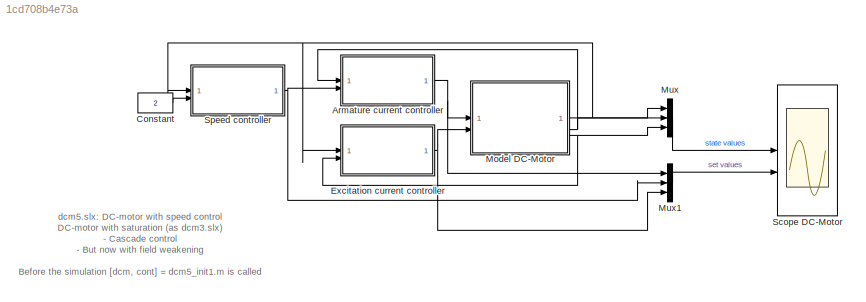
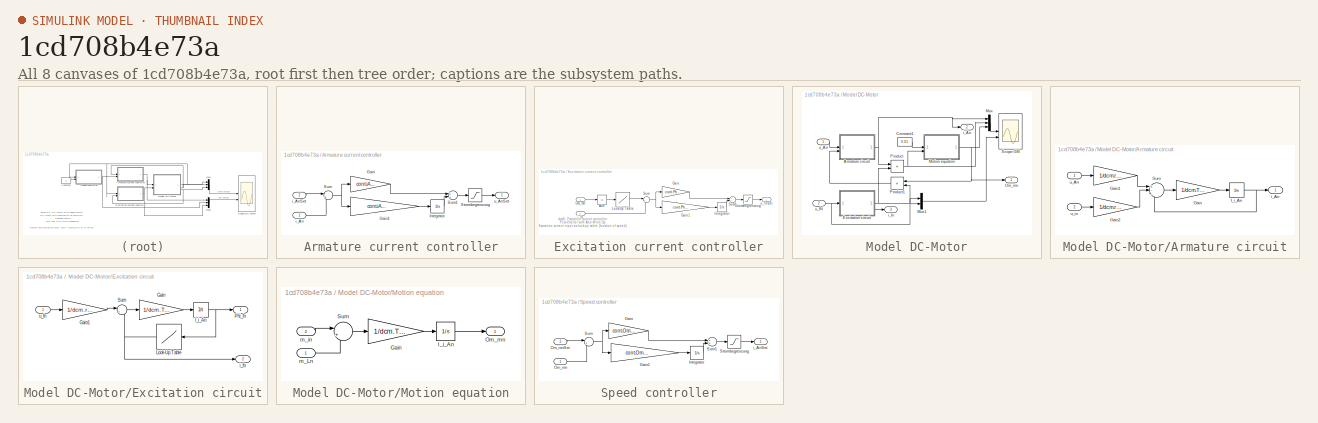
[diagram: thumbnail index - all 8 canvases of the model, root first then tree order]
MODEL slx_1cd708b4e73a
KIND model
CONFIG AbsTol = auto
CONFIG EnableMultiTasking = on
CONFIG FixedStep = auto
CONFIG InitFcn = [dcm, cont] = dcm5_init
CONFIG MaxStep = auto
CONFIG MinStep = auto
CONFIG RelTol = 1e-3
CONFIG SampleTimeConstraint = Unconstrained
CONFIG SolverName = ode45
CONFIG StartTime = 0.0
CONFIG StopTime = 2
BLOCK [SubSystem] Armature current controller
BLOCK [Gain] Armature current controller/Gain
  Gain = cont.iA.K
  OutDataTypeStr = Inherit: Same as input
  ParamDataTypeStr = Inherit: Same as input
  SaturateOnIntegerOverflow = on
BLOCK [Gain] Armature current controller/Gain1
  Gain = cont.iA.K/cont.iA.TN
  OutDataTypeStr = Inherit: Same as input
  ParamDataTypeStr = Inherit: Same as input
  SaturateOnIntegerOverflow = on
BLOCK [Integrator] Armature current controller/Integrator
  LimitOutput = on
  LowerSaturationLimit = -cont.u_Anmax
  UpperSaturationLimit = cont.u_Anmax
BLOCK [Saturate] Armature current controller/Strombegrenzung
  LowerLimit = -cont.u_Anmax
  UpperLimit = cont.u_Anmax
BLOCK [Sum] Armature current controller/Sum
  InputSameDT = on
  Inputs = |+-
  OutDataTypeStr = Inherit: Same as first input
  SaturateOnIntegerOverflow = on
BLOCK [Sum] Armature current controller/Sum1
  InputSameDT = on
  OutDataTypeStr = Inherit: Same as first input
  SaturateOnIntegerOverflow = on
BLOCK [Inport] Armature current controller/i_An
BLOCK [Inport] Armature current controller/i_AnSet
  Port = 2
BLOCK [Outport] Armature current controller/u_AnSet
  InitialOutput = 0
BLOCK [Constant] Constant
  Value = 2
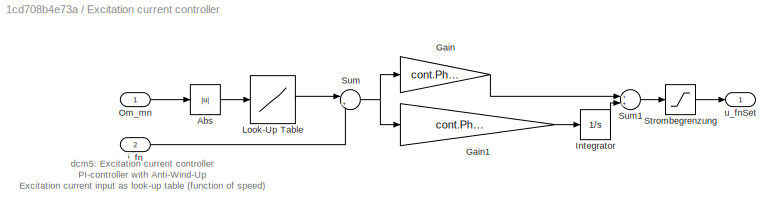
BLOCK [SubSystem] Excitation current controller
BLOCK [Abs] Excitation current controller/Abs
BLOCK [Gain] Excitation current controller/Gain
  Gain = cont.Phi.K
  OutDataTypeStr = Inherit: Same as input
  ParamDataTypeStr = Inherit: Same as input
  SaturateOnIntegerOverflow = on
BLOCK [Gain] Excitation current controller/Gain1
  Gain = cont.Phi.K/cont.Phi.TN
  OutDataTypeStr = Inherit: Same as input
  ParamDataTypeStr = Inherit: Same as input
  SaturateOnIntegerOverflow = on
BLOCK [Integrator] Excitation current controller/Integrator
  InitialCondition = dcm.Pfi_f0
  LimitOutput = on
  LowerSaturationLimit = 0.3*cont.u_fnmax
  UpperSaturationLimit = cont.u_fnmax
BLOCK [Lookup] Excitation current controller/Look-Up Table
  InputValues = cont.LookUpTable.Om
  Table = cont.LookUpTable.i_f
BLOCK [Inport] Excitation current controller/Om_mn
BLOCK [Saturate] Excitation current controller/Strombegrenzung
  LowerLimit = 0.3*cont.u_fnmax
  UpperLimit = cont.u_fnmax
BLOCK [Sum] Excitation current controller/Sum
  InputSameDT = on
  Inputs = |+-
  OutDataTypeStr = Inherit: Same as first input
  SaturateOnIntegerOverflow = on
BLOCK [Sum] Excitation current controller/Sum1
  InputSameDT = on
  OutDataTypeStr = Inherit: Same as first input
  SaturateOnIntegerOverflow = on
BLOCK [Inport] Excitation current controller/i_fn
  Port = 2
BLOCK [Outport] Excitation current controller/u_fnSet
  InitialOutput = 0
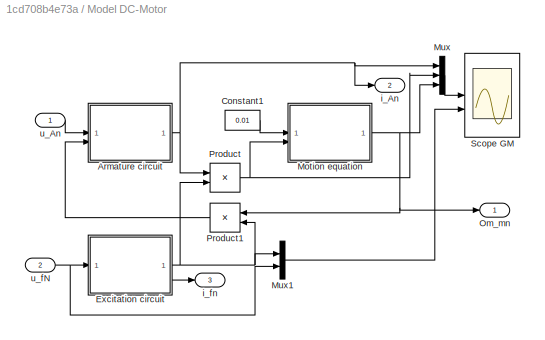
BLOCK [SubSystem] Model DC-Motor
BLOCK [SubSystem] Model DC-Motor/Armature circuit
BLOCK [Gain] Model DC-Motor/Armature circuit/Gain
  Gain = 1/dcm.T_A
  OutDataTypeStr = Inherit: Same as input
  ParamDataTypeStr = Inherit: Same as input
  SaturateOnIntegerOverflow = on
BLOCK [Gain] Model DC-Motor/Armature circuit/Gain1
  Gain = 1/dcm.r_A
  OutDataTypeStr = Inherit: Same as input
  ParamDataTypeStr = Inherit: Same as input
  SaturateOnIntegerOverflow = on
BLOCK [Gain] Model DC-Motor/Armature circuit/Gain2
  Gain = 1/dcm.r_A
  OutDataTypeStr = Inherit: Same as input
  ParamDataTypeStr = Inherit: Same as input
  SaturateOnIntegerOverflow = on
BLOCK [Integrator] Model DC-Motor/Armature circuit/I_i_An
BLOCK [Sum] Model DC-Motor/Armature circuit/Sum
  InputSameDT = on
  Inputs = +--
  OutDataTypeStr = Inherit: Same as first input
  SaturateOnIntegerOverflow = on
BLOCK [Outport] Model DC-Motor/Armature circuit/i_An
BLOCK [Inport] Model DC-Motor/Armature circuit/u_An
BLOCK [Inport] Model DC-Motor/Armature circuit/u_in
  Port = 2
BLOCK [Constant] Model DC-Motor/Constant1
  Value = 0.01
BLOCK [SubSystem] Model DC-Motor/Excitation circuit
BLOCK [Gain] Model DC-Motor/Excitation circuit/Gain
  Gain = 1/dcm.T_f
  OutDataTypeStr = Inherit: Same as input
  ParamDataTypeStr = Inherit: Same as input
  SaturateOnIntegerOverflow = on
BLOCK [Gain] Model DC-Motor/Excitation circuit/Gain1
  Gain = 1/dcm.r_f
  OutDataTypeStr = Inherit: Same as input
  ParamDataTypeStr = Inherit: Same as input
  SaturateOnIntegerOverflow = on
BLOCK [Integrator] Model DC-Motor/Excitation circuit/I_i_An
  InitialCondition = dcm.Pfi_f0
BLOCK [Lookup] Model DC-Motor/Excitation circuit/Look-Up Table
  InputValues = dcm.Phi_f
  Table = dcm.i_f
BLOCK [Outport] Model DC-Motor/Excitation circuit/Phi_fn
BLOCK [Sum] Model DC-Motor/Excitation circuit/Sum
  InputSameDT = on
  Inputs = |+-
  OutDataTypeStr = Inherit: Same as first input
  SaturateOnIntegerOverflow = on
BLOCK [Outport] Model DC-Motor/Excitation circuit/i_fn
  Port = 2
BLOCK [Inport] Model DC-Motor/Excitation circuit/u_fn
BLOCK [SubSystem] Model DC-Motor/Motion equation
BLOCK [Gain] Model DC-Motor/Motion equation/Gain
  Gain = 1/dcm.T_J
  OutDataTypeStr = Inherit: Same as input
  ParamDataTypeStr = Inherit: Same as input
  SaturateOnIntegerOverflow = on
BLOCK [Integrator] Model DC-Motor/Motion equation/I_i_An
  InitialCondition = dcm.Om_m0
BLOCK [Outport] Model DC-Motor/Motion equation/Om_mn
BLOCK [Sum] Model DC-Motor/Motion equation/Sum
  InputSameDT = on
  Inputs = |+-
  OutDataTypeStr = Inherit: Same as first input
  SaturateOnIntegerOverflow = on
BLOCK [Inport] Model DC-Motor/Motion equation/m_Ln
BLOCK [Inport] Model DC-Motor/Motion equation/m_in
  Port = 2
BLOCK [Mux] Model DC-Motor/Mux
  DisplayOption = bar
  Inputs = 3
BLOCK [Mux] Model DC-Motor/Mux1
  DisplayOption = bar
  Inputs = 2
BLOCK [Outport] Model DC-Motor/Om_mn
BLOCK [Product] Model DC-Motor/Product
  InputSameDT = on
  OutDataTypeStr = Inherit: Same as first input
  SaturateOnIntegerOverflow = on
BLOCK [Product] Model DC-Motor/Product1
  InputSameDT = on
  OutDataTypeStr = Inherit: Same as first input
  SaturateOnIntegerOverflow = on
BLOCK [Scope] Model DC-Motor/Scope GM
  Floating = off
  NumInputPorts = 2
  ScopeSpecificationString = C++SS(StrPVP('Location','[18, 185, 521, 811]'),StrPVP('Open','off'),StrPVP('ZoomMode','xonly'),MxPVP('AxesTitles',54,'struct(''axes1'',''%<SignalLabel>'',''axes2'',''%<SignalLabel>'')'),StrPVP('ShowLegends','off'),StrPVP('TimeRange','2'),StrPVP('YMin','0~0.5'),StrPVP('YMax','2~1'),StrPVP('DataFormat','StructureWithTime'),StrPVP('BlockParamSampleTime','0'),StrPVP('LimitDataPoints','on'),StrPVP('Dec...<+52ch>
BLOCK [Outport] Model DC-Motor/i_An
  Port = 2
BLOCK [Outport] Model DC-Motor/i_fn
  Port = 3
BLOCK [Inport] Model DC-Motor/u_An
BLOCK [Inport] Model DC-Motor/u_fN
  Port = 2
BLOCK [Mux] Mux
  DisplayOption = bar
  Inputs = 3
BLOCK [Mux] Mux1
  DisplayOption = bar
  Inputs = 3
BLOCK [Scope] Scope DC-Motor
  Floating = off
  NumInputPorts = 2
  ScopeSpecificationString = Simulink.scopes.TimeScopeBlockCfg('CurrentConfiguration', extmgr.ConfigurationSet(extmgr.Configuration('Core','General UI',true),extmgr.Configuration('Core','Source UI',true),extmgr.Configuration('Sources','WiredSimulink',true,'DataLoggingVariableName','ScopeData1','DataLoggingSaveFormat','StructureWithTime','DataLoggingLimitDataPoints',true,'DataLoggingDecimation','1','DataLoggingDecimateData',tr...<+2442ch>
BLOCK [SubSystem] Speed controller
BLOCK [Gain] Speed controller/Gain
  Gain = cont.Om.K
  OutDataTypeStr = Inherit: Same as input
  ParamDataTypeStr = Inherit: Same as input
  SaturateOnIntegerOverflow = on
BLOCK [Gain] Speed controller/Gain1
  Gain = cont.Om.K/cont.Om.TN
  OutDataTypeStr = Inherit: Same as input
  ParamDataTypeStr = Inherit: Same as input
  SaturateOnIntegerOverflow = on
BLOCK [Integrator] Speed controller/Integrator
  LimitOutput = on
  LowerSaturationLimit = -cont.i_Anmax
  UpperSaturationLimit = cont.i_Anmax
BLOCK [Inport] Speed controller/Om_mn
BLOCK [Inport] Speed controller/Om_mnSet
  Port = 2
BLOCK [Saturate] Speed controller/Strombegrenzung
  LowerLimit = -cont.i_Anmax
  UpperLimit = cont.i_Anmax
BLOCK [Sum] Speed controller/Sum
  InputSameDT = on
  Inputs = |+-
  OutDataTypeStr = Inherit: Same as first input
  SaturateOnIntegerOverflow = on
BLOCK [Sum] Speed controller/Sum1
  InputSameDT = on
  OutDataTypeStr = Inherit: Same as first input
  SaturateOnIntegerOverflow = on
BLOCK [Outport] Speed controller/i_AnSet
  InitialOutput = 0
ANNOTATION (root): dcm5.slx: DC-motor with speed control DC-motor with saturation (as dcm3.slx) - Cascade control - But now with field weakening Before the simulation [dcm, cont] = dcm5_init1.m is called Task: 1. Verify the results of case_2.m (without saturation). 2. Consider now the saturation. Why is the speed controller not working? What do you need to change? Use [dcm, cont] = dcm5_init2 as help!
ANNOTATION Excitation current controller: dcm5: Excitation current controller PI-controller with Anti-Wind-Up Excitation current input as look-up table (function of speed)
LINE Armature current controller/Gain1:1 -> Armature current controller/Integrator:1
LINE Armature current controller/Gain:1 -> Armature current controller/Sum1:1
LINE Armature current controller/Integrator:1 -> Armature current controller/Sum1:2
LINE Armature current controller/Strombegrenzung:1 -> Armature current controller/u_AnSet:1
LINE Armature current controller/Sum1:1 -> Armature current controller/Strombegrenzung:1
NET Armature current controller/Sum:1 -> Armature current controller/Gain1:1, Armature current controller/Gain:1
LINE Armature current controller/i_An:1 -> Armature current controller/Sum:2
LINE Armature current controller/i_AnSet:1 -> Armature current controller/Sum:1
NET Armature current controller:1 -> Model DC-Motor:1, Mux1:1
LINE Constant:1 -> Speed controller:2
LINE Excitation current controller/Abs:1 -> Excitation current controller/Look-Up Table:1
LINE Excitation current controller/Gain1:1 -> Excitation current controller/Integrator:1
LINE Excitation current controller/Gain:1 -> Excitation current controller/Sum1:1
LINE Excitation current controller/Integrator:1 -> Excitation current controller/Sum1:2
LINE Excitation current controller/Look-Up Table:1 -> Excitation current controller/Sum:1
LINE Excitation current controller/Om_mn:1 -> Excitation current controller/Abs:1
LINE Excitation current controller/Strombegrenzung:1 -> Excitation current controller/u_fnSet:1
LINE Excitation current controller/Sum1:1 -> Excitation current controller/Strombegrenzung:1
NET Excitation current controller/Sum:1 -> Excitation current controller/Gain1:1, Excitation current controller/Gain:1
LINE Excitation current controller/i_fn:1 -> Excitation current controller/Sum:2
NET Excitation current controller:1 -> Model DC-Motor:2, Mux1:3
LINE Model DC-Motor/Armature circuit/Gain1:1 -> Model DC-Motor/Armature circuit/Sum:1
LINE Model DC-Motor/Armature circuit/Gain2:1 -> Model DC-Motor/Armature circuit/Sum:2
LINE Model DC-Motor/Armature circuit/Gain:1 -> Model DC-Motor/Armature circuit/I_i_An:1
NET Model DC-Motor/Armature circuit/I_i_An:1 -> Model DC-Motor/Armature circuit/Sum:3, Model DC-Motor/Armature circuit/i_An:1
LINE Model DC-Motor/Armature circuit/Sum:1 -> Model DC-Motor/Armature circuit/Gain:1
LINE Model DC-Motor/Armature circuit/u_An:1 -> Model DC-Motor/Armature circuit/Gain1:1
LINE Model DC-Motor/Armature circuit/u_in:1 -> Model DC-Motor/Armature circuit/Gain2:1
NET Model DC-Motor/Armature circuit:1 -> Model DC-Motor/Mux:1, Model DC-Motor/Product:1, Model DC-Motor/i_An:1
LINE Model DC-Motor/Constant1:1 -> Model DC-Motor/Motion equation:1
LINE Model DC-Motor/Excitation circuit/Gain1:1 -> Model DC-Motor/Excitation circuit/Sum:1
LINE Model DC-Motor/Excitation circuit/Gain:1 -> Model DC-Motor/Excitation circuit/I_i_An:1
NET Model DC-Motor/Excitation circuit/I_i_An:1 -> Model DC-Motor/Excitation circuit/Look-Up Table:1, Model DC-Motor/Excitation circuit/Phi_fn:1
NET Model DC-Motor/Excitation circuit/Look-Up Table:1 -> Model DC-Motor/Excitation circuit/Sum:2, Model DC-Motor/Excitation circuit/i_fn:1
LINE Model DC-Motor/Excitation circuit/Sum:1 -> Model DC-Motor/Excitation circuit/Gain:1
LINE Model DC-Motor/Excitation circuit/u_fn:1 -> Model DC-Motor/Excitation circuit/Gain1:1
NET Model DC-Motor/Excitation circuit:1 -> Model DC-Motor/Mux1:1, Model DC-Motor/Product1:2, Model DC-Motor/Product:2
LINE Model DC-Motor/Excitation circuit:2 -> Model DC-Motor/i_fn:1
LINE Model DC-Motor/Motion equation/Gain:1 -> Model DC-Motor/Motion equation/I_i_An:1
LINE Model DC-Motor/Motion equation/I_i_An:1 -> Model DC-Motor/Motion equation/Om_mn:1
LINE Model DC-Motor/Motion equation/Sum:1 -> Model DC-Motor/Motion equation/Gain:1
LINE Model DC-Motor/Motion equation/m_Ln:1 -> Model DC-Motor/Motion equation/Sum:2
LINE Model DC-Motor/Motion equation/m_in:1 -> Model DC-Motor/Motion equation/Sum:1
NET Model DC-Motor/Motion equation:1 -> Model DC-Motor/Mux:3, Model DC-Motor/Om_mn:1, Model DC-Motor/Product1:1
LINE Model DC-Motor/Mux1:1 -> Model DC-Motor/Scope GM:2
LINE Model DC-Motor/Mux:1 -> Model DC-Motor/Scope GM:1
LINE Model DC-Motor/Product1:1 -> Model DC-Motor/Armature circuit:2
NET Model DC-Motor/Product:1 -> Model DC-Motor/Motion equation:2, Model DC-Motor/Mux:2
LINE Model DC-Motor/u_An:1 -> Model DC-Motor/Armature circuit:1
NET Model DC-Motor/u_fN:1 -> Model DC-Motor/Excitation circuit:1, Model DC-Motor/Mux1:2
NET Model DC-Motor:1 -> Excitation current controller:1, Mux:1, Speed controller:1
NET Model DC-Motor:2 -> Armature current controller:1, Mux:2
NET Model DC-Motor:3 -> Excitation current controller:2, Mux:3
LINE Mux1:1 -> Scope DC-Motor:2
LINE Mux:1 -> Scope DC-Motor:1
LINE Speed controller/Gain1:1 -> Speed controller/Integrator:1
LINE Speed controller/Gain:1 -> Speed controller/Sum1:1
LINE Speed controller/Integrator:1 -> Speed controller/Sum1:2
LINE Speed controller/Om_mn:1 -> Speed controller/Sum:2
LINE Speed controller/Om_mnSet:1 -> Speed controller/Sum:1
LINE Speed controller/Strombegrenzung:1 -> Speed controller/i_AnSet:1
LINE Speed controller/Sum1:1 -> Speed controller/Strombegrenzung:1
NET Speed controller/Sum:1 -> Speed controller/Gain1:1, Speed controller/Gain:1
NET Speed controller:1 -> Armature current controller:2, Mux1:2
note: NET lines group one-source signal fan-out (src -> all destinations, sorted); 1:1 wires keep LINE
